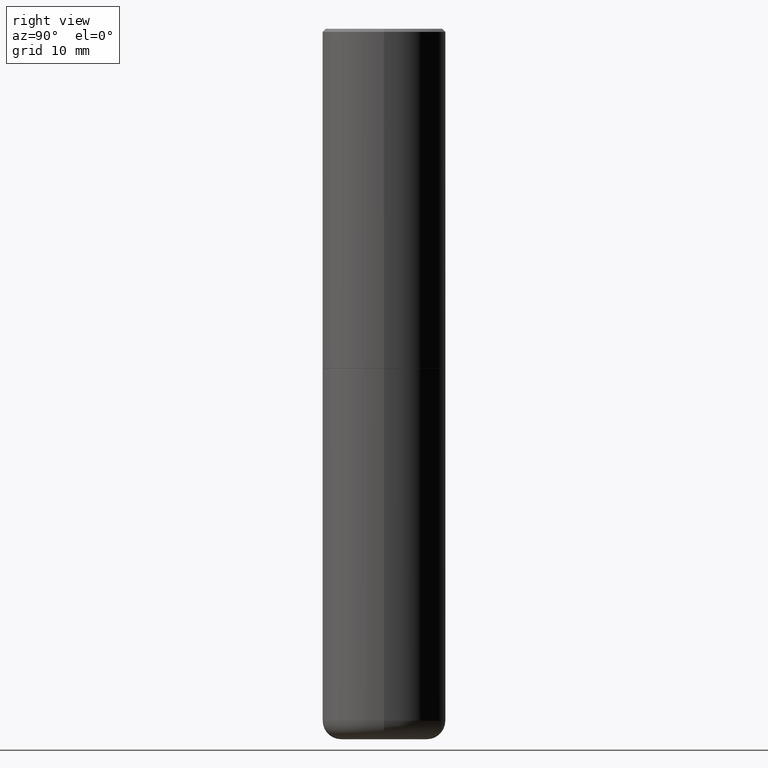
[diagram: clean part render]
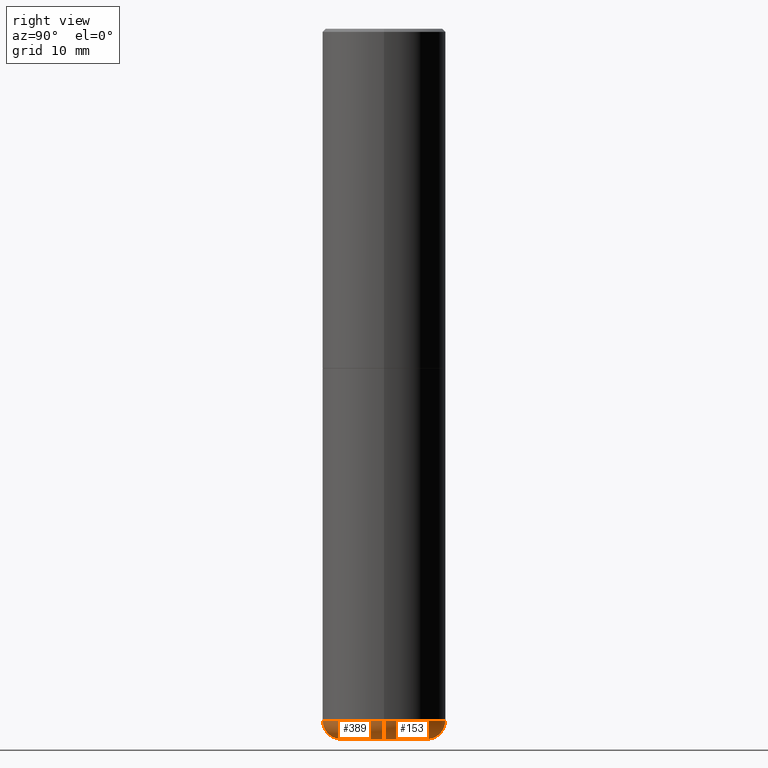
[diagram: same view with one multi-face feature highlighted, each face labeled with its STEP entity id]
A machine part, right view. The highlighted faces form ONE feature: a constant-radius fillet chain: 2 tangent blend faces with common blend radius 2.9997 mm. The faces share edges in the B-rep.
Their STEP definitions:
[1] entity #389 (Torus):
#6 = EDGE_CURVE ( 'NONE', #299, #298, #411, .T. ) ;
#9 = CARTESIAN_POINT ( 'NONE',  ( -0.2756000000000000116, -1.343743118387401317E-14, -4.409499999999999531 ) ) ;
#35 = TOROIDAL_SURFACE ( 'NONE', #371, 0.2756000000000000116, 0.1180999999999997052 ) ;
#55 = VERTEX_POINT ( 'NONE', #215 ) ;
#64 = ORIENTED_EDGE ( 'NONE', *, *, #315, .T. ) ;
#77 = CARTESIAN_POINT ( 'NONE',  ( 1.107210456688382074E-28, -1.580803090974622074E-14, -4.527599999999998737 ) ) ;
#92 = CIRCLE ( 'NONE', #341, 0.1180999999999997191 ) ;
#96 = DIRECTION ( 'NONE',  ( -6.982962677686266711E-15, -1.000000000000000000, 3.491481338843145583E-15 ) ) ;
#109 = EDGE_CURVE ( 'NONE', #55, #152, #92, .T. ) ;
#118 = ORIENTED_EDGE ( 'NONE', *, *, #109, .F. ) ;
#146 = EDGE_LOOP ( 'NONE', ( #118, #64, #391, #352 ) ) ;
#152 = VERTEX_POINT ( 'NONE', #205 ) ;
#178 = AXIS2_PLACEMENT_3D ( 'NONE', #77, #217, #255 ) ;
#183 = DIRECTION ( 'NONE',  ( 1.000000000000000000, -6.982962677686273021E-15, 0.000000000000000000 ) ) ;
#189 = EDGE_CURVE ( 'NONE', #152, #298, #271, .T. ) ;
#205 = CARTESIAN_POINT ( 'NONE',  ( -0.3936999999999998279, -1.259828021294133576E-14, -4.409499999999999531 ) ) ;
#215 = CARTESIAN_POINT ( 'NONE',  ( -0.2756000000000000116, -1.322402767146636311E-14, -4.527599999999998737 ) ) ;
#217 = DIRECTION ( 'NONE',  ( -2.445468806185136597E-29, 3.491481338843145583E-15, 1.000000000000000000 ) ) ;
#234 = AXIS2_PLACEMENT_3D ( 'NONE', #283, #96, #183 ) ;
#241 = CARTESIAN_POINT ( 'NONE',  ( 1.078329470087335798E-28, -1.539568696362884818E-14, -4.409499999999999531 ) ) ;
#255 = DIRECTION ( 'NONE',  ( 1.000000000000000000, -6.982962677686265922E-15, 0.000000000000000000 ) ) ;
#263 = DIRECTION ( 'NONE',  ( -2.445468806185136597E-29, 3.491481338843145583E-15, 1.000000000000000000 ) ) ;
#271 = CIRCLE ( 'NONE', #284, 0.3936999999999999389 ) ;
#277 = DIRECTION ( 'NONE',  ( 1.000000000000000000, -6.982962677686265133E-15, 0.000000000000000000 ) ) ;
#283 = CARTESIAN_POINT ( 'NONE',  ( 0.2756000000000000116, -1.732019147759918314E-14, -4.409499999999999531 ) ) ;
#284 = AXIS2_PLACEMENT_3D ( 'NONE', #402, #370, #277 ) ;
#298 = VERTEX_POINT ( 'NONE', #377 ) ;
#299 = VERTEX_POINT ( 'NONE', #325 ) ;
#314 = DIRECTION ( 'NONE',  ( -1.000000000000000000, 7.105427357601005014E-15, 0.000000000000000000 ) ) ;
#315 = EDGE_CURVE ( 'NONE', #55, #299, #364, .T. ) ;
#325 = CARTESIAN_POINT ( 'NONE',  ( 0.2756000000000000116, -1.773253542371655569E-14, -4.527599999999998737 ) ) ;
#341 = AXIS2_PLACEMENT_3D ( 'NONE', #9, #399, #314 ) ;
#352 = ORIENTED_EDGE ( 'NONE', *, *, #189, .F. ) ;
#357 = FACE_OUTER_BOUND ( 'NONE', #146, .T. ) ;
#364 = CIRCLE ( 'NONE', #178, 0.2756000000000000116 ) ;
#367 = DIRECTION ( 'NONE',  ( 1.000000000000000000, -6.982962677686268288E-15, 4.883557194083112901E-29 ) ) ;
#370 = DIRECTION ( 'NONE',  ( -2.445468806185136597E-29, 3.491481338843145583E-15, 1.000000000000000000 ) ) ;
#371 = AXIS2_PLACEMENT_3D ( 'NONE', #241, #263, #367 ) ;
#377 = CARTESIAN_POINT ( 'NONE',  ( 0.3936999999999998279, -1.814487936983393140E-14, -4.409499999999999531 ) ) ;
#389 = ADVANCED_FACE ( 'NONE', ( #357 ), #35, .T. ) ;
#391 = ORIENTED_EDGE ( 'NONE', *, *, #6, .T. ) ;
#399 = DIRECTION ( 'NONE',  ( 7.105427357601001859E-15, 1.000000000000000000, -3.491481338843145583E-15 ) ) ;
#402 = CARTESIAN_POINT ( 'NONE',  ( 1.078329470087335798E-28, -1.539568696362884818E-14, -4.409499999999999531 ) ) ;
#411 = CIRCLE ( 'NONE', #234, 0.1180999999999997191 ) ;
[2] entity #153 (Torus):
#6 = EDGE_CURVE ( 'NONE', #299, #298, #411, .T. ) ;
#9 = CARTESIAN_POINT ( 'NONE',  ( -0.2756000000000000116, -1.343743118387401317E-14, -4.409499999999999531 ) ) ;
#19 = DIRECTION ( 'NONE',  ( -2.445468806185136597E-29, 3.491481338843145583E-15, 1.000000000000000000 ) ) ;
#23 = CARTESIAN_POINT ( 'NONE',  ( 1.107210456688382074E-28, -1.580803090974622074E-14, -4.527599999999998737 ) ) ;
#29 = DIRECTION ( 'NONE',  ( 1.000000000000000000, -6.982962677686265922E-15, 0.000000000000000000 ) ) ;
#44 = DIRECTION ( 'NONE',  ( 1.000000000000000000, -6.982962677686265133E-15, 0.000000000000000000 ) ) ;
#45 = DIRECTION ( 'NONE',  ( -2.445468806185136597E-29, 3.491481338843145583E-15, 1.000000000000000000 ) ) ;
#55 = VERTEX_POINT ( 'NONE', #215 ) ;
#57 = ORIENTED_EDGE ( 'NONE', *, *, #63, .F. ) ;
#59 = CIRCLE ( 'NONE', #247, 0.3936999999999999389 ) ;
#63 = EDGE_CURVE ( 'NONE', #298, #152, #59, .T. ) ;
#65 = TOROIDAL_SURFACE ( 'NONE', #309, 0.2756000000000000116, 0.1180999999999997052 ) ;
#73 = CIRCLE ( 'NONE', #172, 0.2756000000000000116 ) ;
#92 = CIRCLE ( 'NONE', #341, 0.1180999999999997191 ) ;
#96 = DIRECTION ( 'NONE',  ( -6.982962677686266711E-15, -1.000000000000000000, 3.491481338843145583E-15 ) ) ;
#109 = EDGE_CURVE ( 'NONE', #55, #152, #92, .T. ) ;
#152 = VERTEX_POINT ( 'NONE', #205 ) ;
#153 = ADVANCED_FACE ( 'NONE', ( #209 ), #65, .T. ) ;
#172 = AXIS2_PLACEMENT_3D ( 'NONE', #23, #355, #29 ) ;
#174 = CARTESIAN_POINT ( 'NONE',  ( 1.078329470087335798E-28, -1.539568696362884818E-14, -4.409499999999999531 ) ) ;
#183 = DIRECTION ( 'NONE',  ( 1.000000000000000000, -6.982962677686273021E-15, 0.000000000000000000 ) ) ;
#205 = CARTESIAN_POINT ( 'NONE',  ( -0.3936999999999998279, -1.259828021294133576E-14, -4.409499999999999531 ) ) ;
#209 = FACE_OUTER_BOUND ( 'NONE', #382, .T. ) ;
#215 = CARTESIAN_POINT ( 'NONE',  ( -0.2756000000000000116, -1.322402767146636311E-14, -4.527599999999998737 ) ) ;
#234 = AXIS2_PLACEMENT_3D ( 'NONE', #283, #96, #183 ) ;
#247 = AXIS2_PLACEMENT_3D ( 'NONE', #368, #19, #44 ) ;
#262 = ORIENTED_EDGE ( 'NONE', *, *, #273, .T. ) ;
#273 = EDGE_CURVE ( 'NONE', #299, #55, #73, .T. ) ;
#283 = CARTESIAN_POINT ( 'NONE',  ( 0.2756000000000000116, -1.732019147759918314E-14, -4.409499999999999531 ) ) ;
#290 = ORIENTED_EDGE ( 'NONE', *, *, #6, .F. ) ;
#298 = VERTEX_POINT ( 'NONE', #377 ) ;
#299 = VERTEX_POINT ( 'NONE', #325 ) ;
#309 = AXIS2_PLACEMENT_3D ( 'NONE', #174, #45, #406 ) ;
#314 = DIRECTION ( 'NONE',  ( -1.000000000000000000, 7.105427357601005014E-15, 0.000000000000000000 ) ) ;
#325 = CARTESIAN_POINT ( 'NONE',  ( 0.2756000000000000116, -1.773253542371655569E-14, -4.527599999999998737 ) ) ;
#329 = ORIENTED_EDGE ( 'NONE', *, *, #109, .T. ) ;
#341 = AXIS2_PLACEMENT_3D ( 'NONE', #9, #399, #314 ) ;
#355 = DIRECTION ( 'NONE',  ( -2.445468806185136597E-29, 3.491481338843145583E-15, 1.000000000000000000 ) ) ;
#368 = CARTESIAN_POINT ( 'NONE',  ( 1.078329470087335798E-28, -1.539568696362884818E-14, -4.409499999999999531 ) ) ;
#377 = CARTESIAN_POINT ( 'NONE',  ( 0.3936999999999998279, -1.814487936983393140E-14, -4.409499999999999531 ) ) ;
#382 = EDGE_LOOP ( 'NONE', ( #262, #329, #57, #290 ) ) ;
#399 = DIRECTION ( 'NONE',  ( 7.105427357601001859E-15, 1.000000000000000000, -3.491481338843145583E-15 ) ) ;
#406 = DIRECTION ( 'NONE',  ( 1.000000000000000000, -6.982962677686268288E-15, 4.883557194083112901E-29 ) ) ;
#411 = CIRCLE ( 'NONE', #234, 0.1180999999999997191 ) ;